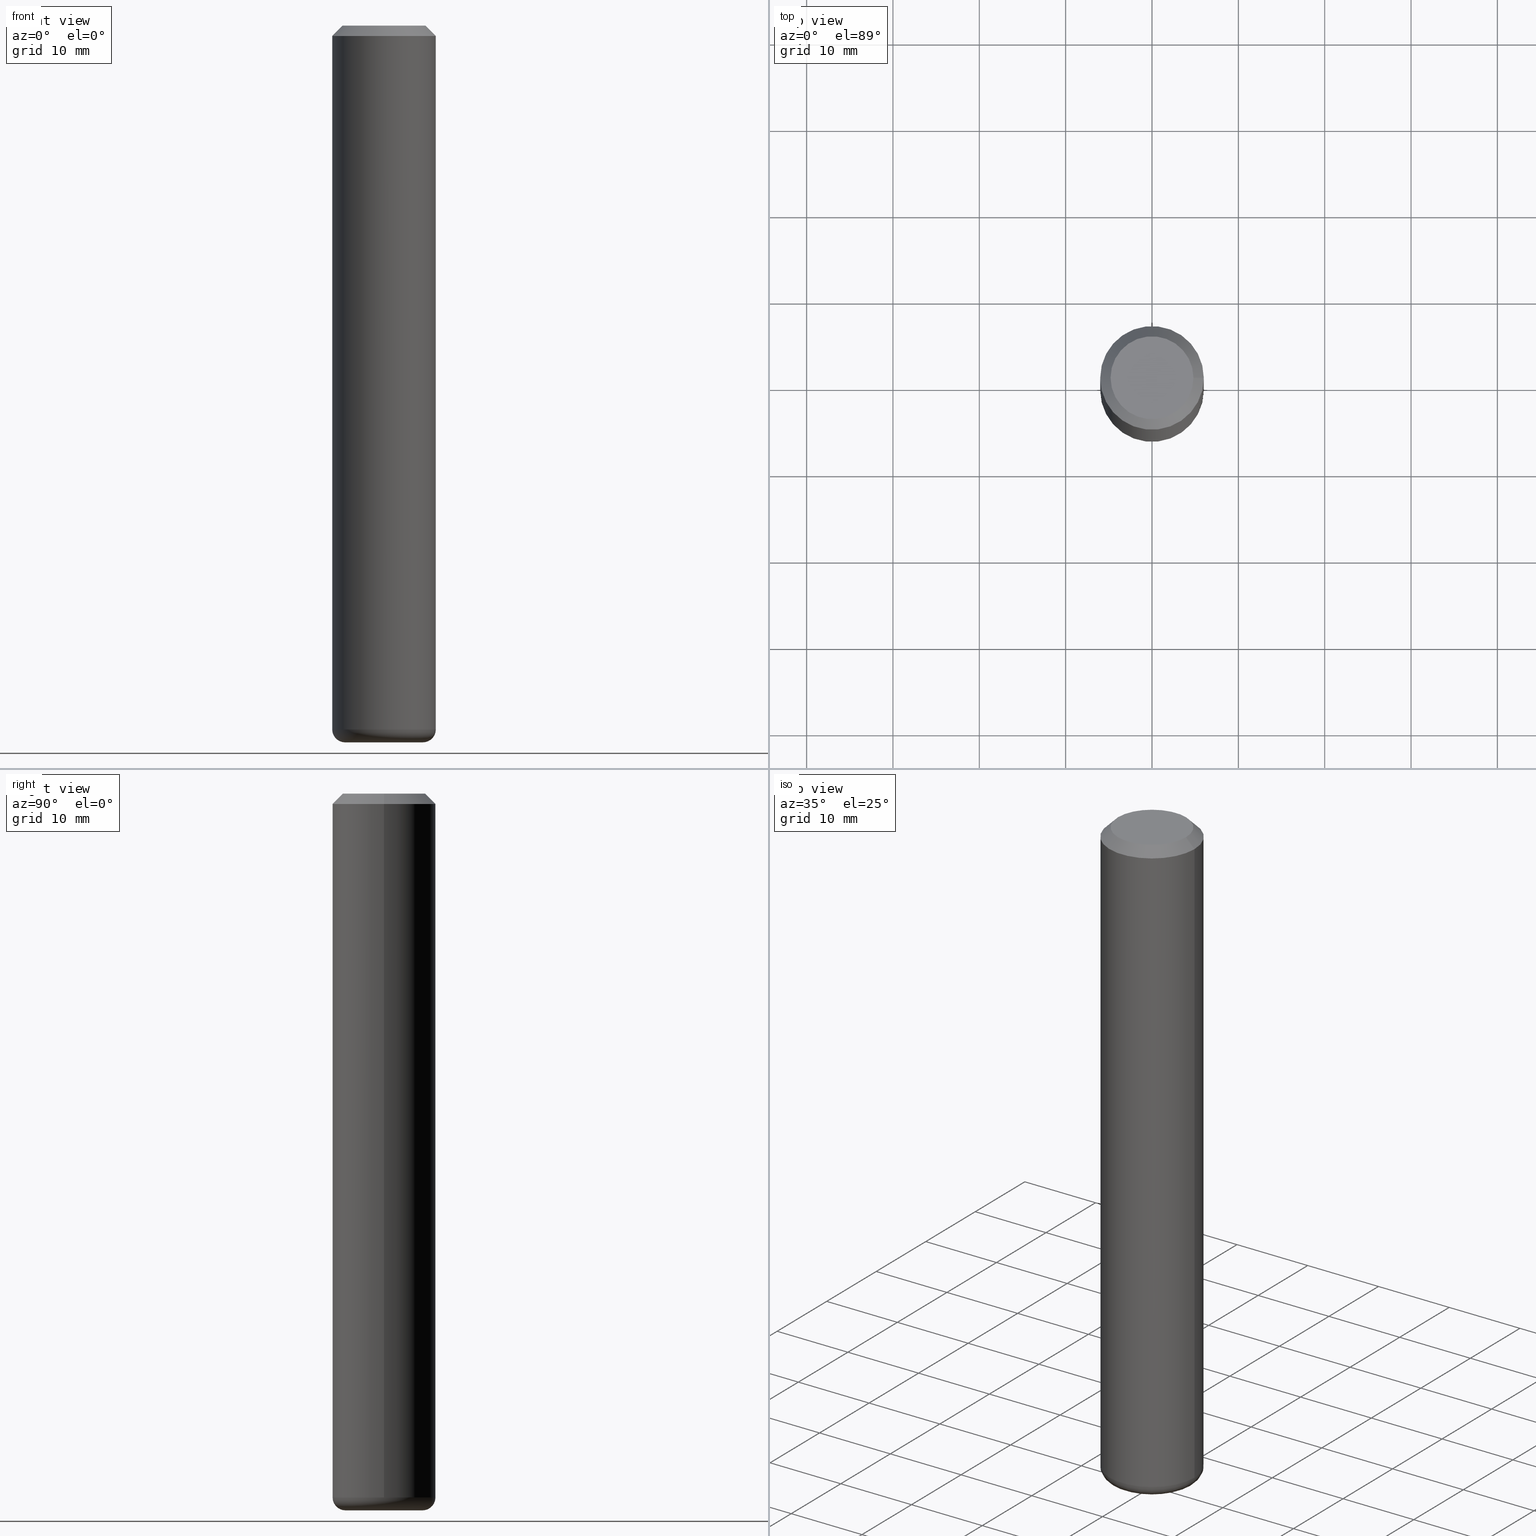
[diagram: canonical four-view strip — front | top / right | iso, engineering-drawing reading convention]
A machine part, canonical four-view strip (front | top / right | iso — engineering-drawing reading convention). The complete STEP part file that produces these views, byte-faithful:
ISO-10303-21;
HEADER;
FILE_DESCRIPTION (( 'STEP AP203' ),
    '1' );
FILE_NAME ('734.122.00.STEP',
    '2019-01-08T23:40:45',
    ( '' ),
    ( '' ),
    'SwSTEP 2.0',
    'SolidWorks 2019',
    '' );
FILE_SCHEMA (( 'CONFIG_CONTROL_DESIGN' ));
ENDSEC;

DATA;
#1 = CC_DESIGN_PERSON_AND_ORGANIZATION_ASSIGNMENT ( #138, #97, ( #116 ) ) ;
#2 = COORDINATED_UNIVERSAL_TIME_OFFSET ( 1, 0, .AHEAD. ) ;
#3 = AXIS2_PLACEMENT_3D ( 'NONE', #160, #59, #6 ) ;
#4 = PERSON_AND_ORGANIZATION ( #168, #75 ) ;
#5 =( NAMED_UNIT ( * ) SI_UNIT ( $, .STERADIAN. ) SOLID_ANGLE_UNIT ( ) );
#6 = DIRECTION ( 'NONE',  ( -1.000000000000000000, 0.0000000000000000000, 6.938893903907212600E-15 ) ) ;
#7 = APPROVAL_DATE_TIME ( #181, #41 ) ;
#8 = CARTESIAN_POINT ( 'NONE',  ( -5.795859022479601622E-13, 0.0000000000000000000, -83.00000000000000000 ) ) ;
#9 = ADVANCED_FACE ( 'NONE', ( #51 ), #218, .F. ) ;
#10 = APPROVAL_DATE_TIME ( #30, #17 ) ;
#11 = DIRECTION ( 'NONE',  ( -1.000000000000000000, 0.0000000000000000000, 6.982962677686266711E-15 ) ) ;
#12 = MANIFOLD_SOLID_BREP ( 'K�rper in Z minus drehen[2]', #221 ) ;
#13 = DIRECTION ( 'NONE',  ( -1.000000000000000000, 0.0000000000000000000, 7.970561502160112194E-15 ) ) ;
#14 = MANIFOLD_SOLID_BREP ( 'K�rper in Z minus drehen[1]', #111 ) ;
#15 = EDGE_LOOP ( 'NONE', ( #54 ) ) ;
#16 = CC_DESIGN_APPROVAL ( #187, ( #162 ) ) ;
#17 = APPROVAL ( #79, 'UNSPECIFIED' ) ;
#18 = PRODUCT_DEFINITION ( 'UNKNOWN', '', #162, #165 ) ;
#19 = AXIS2_PLACEMENT_3D ( 'NONE', #106, #32, #108 ) ;
#20 = DIRECTION ( 'NONE',  ( -7.970561502160112194E-15, 0.0000000000000000000, -1.000000000000000000 ) ) ;
#21 = PERSON_AND_ORGANIZATION ( #168, #75 ) ;
#22 = APPROVAL_ROLE ( '' ) ;
#23 = APPLICATION_CONTEXT ( 'configuration controlled 3d designs of mechanical parts and assemblies' ) ;
#24 = CC_DESIGN_APPROVAL ( #41, ( #18 ) ) ;
#25 = PERSON_AND_ORGANIZATION ( #168, #75 ) ;
#26 = DATE_AND_TIME ( #191, #213 ) ;
#27 = FACE_OUTER_BOUND ( 'NONE', #208, .T. ) ;
#28 = ADVANCED_FACE ( 'NONE', ( #27 ), #143, .T. ) ;
#29 = DIRECTION ( 'NONE',  ( 1.000000000000000000, 0.0000000000000000000, -6.982962677686266711E-15 ) ) ;
#30 = DATE_AND_TIME ( #58, #180 ) ;
#31 = AXIS2_PLACEMENT_3D ( 'NONE', #186, #113, #178 ) ;
#32 = DIRECTION ( 'NONE',  ( -6.982962677686266711E-15, -0.0000000000000000000, -1.000000000000000000 ) ) ;
#33 = FACE_OUTER_BOUND ( 'NONE', #45, .T. ) ;
#34 = APPROVAL_PERSON_ORGANIZATION ( #100, #187, #156 ) ;
#35 = CARTESIAN_POINT ( 'NONE',  ( -5.795859022479601622E-13, 0.0000000000000000000, -83.00000000000000000 ) ) ;
#36 = DIRECTION ( 'NONE',  ( -6.982962677686266711E-15, 0.0000000000000000000, -1.000000000000000000 ) ) ;
#37 = EDGE_LOOP ( 'NONE', ( #190 ) ) ;
#38 = AXIS2_PLACEMENT_3D ( 'NONE', #73, #197, #47 ) ;
#39 = CIRCLE ( 'NONE', #223, 6.000000000000015099 ) ;
#40 = CALENDAR_DATE ( 2019, 9, 1 ) ;
#41 = APPROVAL ( #96, 'UNSPECIFIED' ) ;
#42 = DIRECTION ( 'NONE',  ( 1.000000000000000000, 0.0000000000000000000, 0.0000000000000000000 ) ) ;
#43 = DIRECTION ( 'NONE',  ( -1.000000000000000000, 0.0000000000000000000, 6.982962677686266711E-15 ) ) ;
#44 = AXIS2_PLACEMENT_3D ( 'NONE', #8, #128, #109 ) ;
#45 = EDGE_LOOP ( 'NONE', ( #119 ) ) ;
#46 = CC_DESIGN_PERSON_AND_ORGANIZATION_ASSIGNMENT ( #4, #210, ( #162 ) ) ;
#47 = DIRECTION ( 'NONE',  ( -1.000000000000000000, 0.0000000000000000000, 9.251858538542942245E-15 ) ) ;
#48 = CYLINDRICAL_SURFACE ( 'NONE', #44, 6.000000000000015099 ) ;
#49 = PRODUCT_DEFINITION_SHAPE ( 'NONE', 'NONE',  #18 ) ;
#50 = FACE_OUTER_BOUND ( 'NONE', #154, .T. ) ;
#51 = FACE_OUTER_BOUND ( 'NONE', #65, .T. ) ;
#52 = DIRECTION ( 'NONE',  ( 6.982962677686266711E-15, 0.0000000000000000000, 1.000000000000000000 ) ) ;
#53 = APPROVAL_PERSON_ORGANIZATION ( #170, #17, #153 ) ;
#54 = ORIENTED_EDGE ( 'NONE', *, *, #150, .F. ) ;
#55 = PERSON_AND_ORGANIZATION_ROLE ( 'creator' ) ;
#56 =( LENGTH_UNIT ( ) NAMED_UNIT ( * ) SI_UNIT ( .MILLI., .METRE. ) );
#57 = CC_DESIGN_DATE_AND_TIME_ASSIGNMENT ( #26, #124, ( #18 ) ) ;
#58 = CALENDAR_DATE ( 2019, 9, 1 ) ;
#59 = DIRECTION ( 'NONE',  ( -7.970561502160112194E-15, 0.0000000000000000000, -1.000000000000000000 ) ) ;
#60 = DIRECTION ( 'NONE',  ( -6.982962677686266711E-15, -0.0000000000000000000, -1.000000000000000000 ) ) ;
#61 = ADVANCED_FACE ( 'NONE', ( #140 ), #117, .F. ) ;
#62 = APPROVAL_PERSON_ORGANIZATION ( #94, #41, #22 ) ;
#63 = VERTEX_POINT ( 'NONE', #102 ) ;
#64 = EDGE_LOOP ( 'NONE', ( #148 ) ) ;
#65 = EDGE_LOOP ( 'NONE', ( #101 ) ) ;
#66 = LOCAL_TIME ( 0, 40, 45.00000000000000000, #81 ) ;
#67 = CARTESIAN_POINT ( 'NONE',  ( 4.799999999999996270, 0.0000000000000000000, -3.351822085289405497E-14 ) ) ;
#68 = EDGE_CURVE ( 'NONE', #216, #216, #133, .T. ) ;
#69 = FACE_OUTER_BOUND ( 'NONE', #64, .T. ) ;
#70 = DIRECTION ( 'NONE',  ( 6.982962677686266711E-15, 0.0000000000000000000, 1.000000000000000000 ) ) ;
#71 = ADVANCED_FACE ( 'NONE', ( #103 ), #176, .T. ) ;
#72 = TOROIDAL_SURFACE ( 'NONE', #200, 4.500000000000012434, 1.500000000000000444 ) ;
#73 = CARTESIAN_POINT ( 'NONE',  ( -6.052634716842801132E-13, 0.0000000000000000000, -83.00000000000000000 ) ) ;
#74 = DIRECTION ( 'NONE',  ( 6.982962677686266711E-15, 0.0000000000000000000, 1.000000000000000000 ) ) ;
#75 = ORGANIZATION ( 'UNSPECIFIED', 'UNSPECIFIED', '' ) ;
#76 = DIRECTION ( 'NONE',  ( 1.000000000000000000, 0.0000000000000000000, -6.938893903907211023E-15 ) ) ;
#77 = DATE_AND_TIME ( #40, #167 ) ;
#78 = DIRECTION ( 'NONE',  ( -6.982962677686266711E-15, 0.0000000000000000000, -1.000000000000000000 ) ) ;
#79 = APPROVAL_STATUS ( 'not_yet_approved' ) ;
#80 = ORIENTED_EDGE ( 'NONE', *, *, #150, .T. ) ;
#81 = COORDINATED_UNIVERSAL_TIME_OFFSET ( 1, 0, .AHEAD. ) ;
#82 = ORIENTED_EDGE ( 'NONE', *, *, #184, .F. ) ;
#83 = ADVANCED_BREP_SHAPE_REPRESENTATION ( '734.122.00', ( #14, #12, #177 ), #217 ) ;
#84 = EDGE_LOOP ( 'NONE', ( #82 ) ) ;
#85 = FACE_OUTER_BOUND ( 'NONE', #37, .T. ) ;
#86 = SHAPE_DEFINITION_REPRESENTATION ( #49, #83 ) ;
#87 = VERTEX_POINT ( 'NONE', #146 ) ;
#88 = CARTESIAN_POINT ( 'NONE',  ( -1.515925944695570123E-30, 0.0000000000000000000, -2.170892233950556695E-16 ) ) ;
#89 = CC_DESIGN_PERSON_AND_ORGANIZATION_ASSIGNMENT ( #25, #179, ( #162 ) ) ;
#90 = CC_DESIGN_APPROVAL ( #17, ( #116 ) ) ;
#91 = CARTESIAN_POINT ( 'NONE',  ( -8.379555213223567384E-15, 0.0000000000000000000, -1.200000000000006617 ) ) ;
#92 = CC_DESIGN_PERSON_AND_ORGANIZATION_ASSIGNMENT ( #21, #99, ( #198 ) ) ;
#93 = AXIS2_PLACEMENT_3D ( 'NONE', #91, #74, #222 ) ;
#94 = PERSON_AND_ORGANIZATION ( #168, #75 ) ;
#95 = DIRECTION ( 'NONE',  ( -6.982962677686266711E-15, 0.0000000000000000000, -1.000000000000000000 ) ) ;
#96 = APPROVAL_STATUS ( 'not_yet_approved' ) ;
#97 = PERSON_AND_ORGANIZATION_ROLE ( 'classification_officer' ) ;
#98 = DIRECTION ( 'NONE',  ( -1.000000000000000000, 0.0000000000000000000, 6.982962677686266711E-15 ) ) ;
#99 = PERSON_AND_ORGANIZATION_ROLE ( 'design_owner' ) ;
#100 = PERSON_AND_ORGANIZATION ( #168, #75 ) ;
#101 = ORIENTED_EDGE ( 'NONE', *, *, #184, .T. ) ;
#102 = CARTESIAN_POINT ( 'NONE',  ( -4.500000000000619949, 0.0000000000000000000, -82.99999999999995737 ) ) ;
#103 = FACE_OUTER_BOUND ( 'NONE', #122, .T. ) ;
#104 = FACE_OUTER_BOUND ( 'NONE', #215, .T. ) ;
#105 = CARTESIAN_POINT ( 'NONE',  ( -6.000000000000606626, 0.0000000000000000000, -81.49999999999995737 ) ) ;
#106 = CARTESIAN_POINT ( 'NONE',  ( -3.980288726281172782E-13, 0.0000000000000000000, -57.00000000000000711 ) ) ;
#107 = ADVANCED_FACE ( 'NONE', ( #147, #182 ), #72, .T. ) ;
#108 = DIRECTION ( 'NONE',  ( 1.000000000000000000, 0.0000000000000000000, -6.938893903907211023E-15 ) ) ;
#109 = DIRECTION ( 'NONE',  ( 1.000000000000000000, 0.0000000000000000000, -6.938893903907211023E-15 ) ) ;
#110 = EDGE_CURVE ( 'NONE', #157, #157, #188, .T. ) ;
#111 = CLOSED_SHELL ( 'NONE', ( #61, #163, #107, #9 ) ) ;
#112 = CC_DESIGN_DATE_AND_TIME_ASSIGNMENT ( #189, #192, ( #116 ) ) ;
#113 = DIRECTION ( 'NONE',  ( 7.263061451194562470E-15, -0.0000000000000000000, 1.000000000000000000 ) ) ;
#114 = COORDINATED_UNIVERSAL_TIME_OFFSET ( 1, 0, .AHEAD. ) ;
#115 = PERSON_AND_ORGANIZATION ( #168, #75 ) ;
#116 = SECURITY_CLASSIFICATION ( '', '', #151 ) ;
#117 = PLANE ( 'NONE',  #194 ) ;
#118 = APPLICATION_PROTOCOL_DEFINITION ( 'international standard', 'config_control_design', 1994, #120 ) ;
#119 = ORIENTED_EDGE ( 'NONE', *, *, #172, .F. ) ;
#120 = APPLICATION_CONTEXT ( 'configuration controlled 3d designs of mechanical parts and assemblies' ) ;
#121 = APPLICATION_PROTOCOL_DEFINITION ( 'international standard', 'config_control_design', 1994, #23 ) ;
#122 = EDGE_LOOP ( 'NONE', ( #80 ) ) ;
#123 = AXIS2_PLACEMENT_3D ( 'NONE', #35, #52, #76 ) ;
#124 = DATE_TIME_ROLE ( 'creation_date' ) ;
#125 = CARTESIAN_POINT ( 'NONE',  ( 0.0000000000000000000, 0.0000000000000000000, 0.0000000000000000000 ) ) ;
#126 = DIRECTION ( 'NONE',  ( 6.982962677686266711E-15, 0.0000000000000000000, 1.000000000000000000 ) ) ;
#127 = AXIS2_PLACEMENT_3D ( 'NONE', #88, #70, #164 ) ;
#128 = DIRECTION ( 'NONE',  ( 6.982962677686266711E-15, 0.0000000000000000000, 1.000000000000000000 ) ) ;
#129 = CIRCLE ( 'NONE', #141, 4.799999999999996270 ) ;
#130 = CC_DESIGN_PERSON_AND_ORGANIZATION_ASSIGNMENT ( #115, #55, ( #18 ) ) ;
#131 = APPROVAL_STATUS ( 'not_yet_approved' ) ;
#132 =( NAMED_UNIT ( * ) PLANE_ANGLE_UNIT ( ) SI_UNIT ( $, .RADIAN. ) );
#133 = CIRCLE ( 'NONE', #19, 6.000000000000015099 ) ;
#134 = CARTESIAN_POINT ( 'NONE',  ( 0.0000000000000000000, 0.0000000000000000000, 0.0000000000000000000 ) ) ;
#135 = COORDINATED_UNIVERSAL_TIME_OFFSET ( 1, 0, .AHEAD. ) ;
#136 = EDGE_LOOP ( 'NONE', ( #183 ) ) ;
#137 = DIRECTION ( 'NONE',  ( 0.0000000000000000000, 0.0000000000000000000, 1.000000000000000000 ) ) ;
#138 = PERSON_AND_ORGANIZATION ( #168, #75 ) ;
#139 = CALENDAR_DATE ( 2019, 9, 1 ) ;
#140 = FACE_OUTER_BOUND ( 'NONE', #199, .T. ) ;
#141 = AXIS2_PLACEMENT_3D ( 'NONE', #125, #126, #29 ) ;
#142 = ORIENTED_EDGE ( 'NONE', *, *, #149, .F. ) ;
#143 = PLANE ( 'NONE',  #185 ) ;
#144 = ORIENTED_EDGE ( 'NONE', *, *, #172, .T. ) ;
#145 = CIRCLE ( 'NONE', #38, 4.500000000000014211 ) ;
#146 = CARTESIAN_POINT ( 'NONE',  ( 5.999999999999616307, 0.0000000000000000000, -57.00000000000004974 ) ) ;
#147 = FACE_OUTER_BOUND ( 'NONE', #136, .T. ) ;
#148 = ORIENTED_EDGE ( 'NONE', *, *, #149, .T. ) ;
#149 = EDGE_CURVE ( 'NONE', #87, #87, #39, .T. ) ;
#150 = EDGE_CURVE ( 'NONE', #161, #161, #129, .T. ) ;
#151 = SECURITY_CLASSIFICATION_LEVEL ( 'unclassified' ) ;
#152 = CC_DESIGN_SECURITY_CLASSIFICATION ( #116, ( #162 ) ) ;
#153 = APPROVAL_ROLE ( '' ) ;
#154 = EDGE_LOOP ( 'NONE', ( #214 ) ) ;
#155 = APPROVAL_DATE_TIME ( #77, #187 ) ;
#156 = APPROVAL_ROLE ( '' ) ;
#157 = VERTEX_POINT ( 'NONE', #105 ) ;
#158 = LOCAL_TIME ( 0, 40, 45.00000000000000000, #114 ) ;
#159 = ADVANCED_FACE ( 'NONE', ( #104, #207 ), #166, .T. ) ;
#160 = CARTESIAN_POINT ( 'NONE',  ( -5.933076294310400002E-13, 0.0000000000000000000, -81.50000000000000000 ) ) ;
#161 = VERTEX_POINT ( 'NONE', #67 ) ;
#162 = PRODUCT_DEFINITION_FORMATION_WITH_SPECIFIED_SOURCE ( 'ANY', '', #198, .NOT_KNOWN. ) ;
#163 = ADVANCED_FACE ( 'NONE', ( #85, #69 ), #48, .T. ) ;
#164 = DIRECTION ( 'NONE',  ( 1.000000000000000000, 0.0000000000000000000, -6.982962677686266711E-15 ) ) ;
#165 = DESIGN_CONTEXT ( 'detailed design', #23, 'design' ) ;
#166 = CONICAL_SURFACE ( 'NONE', #203, 4.799999999999996270, 0.7853981633974472798 ) ;
#167 = LOCAL_TIME ( 0, 40, 45.00000000000000000, #2 ) ;
#168 = PERSON ( 'UNSPECIFIED', 'UNSPECIFIED', 'UNSPECIFIED', ('UNSPECIFIED'), ('UNSPECIFIED'), ('UNSPECIFIED') ) ;
#169 = ADVANCED_FACE ( 'NONE', ( #50, #33 ), #220, .T. ) ;
#170 = PERSON_AND_ORGANIZATION ( #168, #75 ) ;
#171 = CARTESIAN_POINT ( 'NONE',  ( 0.0000000000000000000, 0.0000000000000000000, 0.0000000000000000000 ) ) ;
#172 = EDGE_CURVE ( 'NONE', #212, #212, #173, .T. ) ;
#173 = CIRCLE ( 'NONE', #93, 6.000000000000000000 ) ;
#174 = CARTESIAN_POINT ( 'NONE',  ( 5.999999999999616307, 0.0000000000000000000, -57.00000000000004974 ) ) ;
#175 = CARTESIAN_POINT ( 'NONE',  ( -5.933975868951060993E-13, 0.0000000000000000000, -81.50000000000000000 ) ) ;
#176 = PLANE ( 'NONE',  #127 ) ;
#177 = AXIS2_PLACEMENT_3D ( 'NONE', #171, #137, #42 ) ;
#178 = DIRECTION ( 'NONE',  ( 1.000000000000000000, 0.0000000000000000000, -7.263061451194562470E-15 ) ) ;
#179 = PERSON_AND_ORGANIZATION_ROLE ( 'creator' ) ;
#180 = LOCAL_TIME ( 0, 40, 45.00000000000000000, #209 ) ;
#181 = DATE_AND_TIME ( #139, #66 ) ;
#182 = FACE_OUTER_BOUND ( 'NONE', #84, .T. ) ;
#183 = ORIENTED_EDGE ( 'NONE', *, *, #110, .T. ) ;
#184 = EDGE_CURVE ( 'NONE', #63, #63, #145, .T. ) ;
#185 = AXIS2_PLACEMENT_3D ( 'NONE', #196, #95, #43 ) ;
#186 = CARTESIAN_POINT ( 'NONE',  ( -6.052634716842801132E-13, 0.0000000000000000000, -83.00000000000000000 ) ) ;
#187 = APPROVAL ( #131, 'UNSPECIFIED' ) ;
#188 = CIRCLE ( 'NONE', #3, 6.000000000000013323 ) ;
#189 = DATE_AND_TIME ( #205, #158 ) ;
#190 = ORIENTED_EDGE ( 'NONE', *, *, #110, .F. ) ;
#191 = CALENDAR_DATE ( 2019, 9, 1 ) ;
#192 = DATE_TIME_ROLE ( 'classification_date' ) ;
#193 = MECHANICAL_CONTEXT ( 'NONE', #120, 'mechanical' ) ;
#194 = AXIS2_PLACEMENT_3D ( 'NONE', #206, #78, #98 ) ;
#195 = DIRECTION ( 'NONE',  ( 1.000000000000000000, 0.0000000000000000000, -6.938893903907211023E-15 ) ) ;
#196 = CARTESIAN_POINT ( 'NONE',  ( -3.980288726281172782E-13, 0.0000000000000000000, -57.00000000000000711 ) ) ;
#197 = DIRECTION ( 'NONE',  ( -7.970561502160112194E-15, 0.0000000000000000000, -1.000000000000000000 ) ) ;
#198 = PRODUCT ( '734.122.00', '734.122.00', '', ( #193 ) ) ;
#199 = EDGE_LOOP ( 'NONE', ( #142 ) ) ;
#200 = AXIS2_PLACEMENT_3D ( 'NONE', #175, #20, #13 ) ;
#201 = PRODUCT_RELATED_PRODUCT_CATEGORY ( 'detail', '', ( #198 ) ) ;
#202 = CARTESIAN_POINT ( 'NONE',  ( 5.999999999999991118, 0.0000000000000000000, -1.200000000000048361 ) ) ;
#203 = AXIS2_PLACEMENT_3D ( 'NONE', #134, #36, #11 ) ;
#204 = UNCERTAINTY_MEASURE_WITH_UNIT (LENGTH_MEASURE( 1.000000000000000082E-05 ), #56, 'distance_accuracy_value', 'NONE');
#205 = CALENDAR_DATE ( 2019, 9, 1 ) ;
#206 = CARTESIAN_POINT ( 'NONE',  ( -3.980288726281172782E-13, 0.0000000000000000000, -57.00000000000000711 ) ) ;
#207 = FACE_BOUND ( 'NONE', #15, .T. ) ;
#208 = EDGE_LOOP ( 'NONE', ( #219 ) ) ;
#209 = COORDINATED_UNIVERSAL_TIME_OFFSET ( 1, 0, .AHEAD. ) ;
#210 = PERSON_AND_ORGANIZATION_ROLE ( 'design_supplier' ) ;
#211 = CARTESIAN_POINT ( 'NONE',  ( -3.980288726281172782E-13, 0.0000000000000000000, -57.00000000000000711 ) ) ;
#212 = VERTEX_POINT ( 'NONE', #202 ) ;
#213 = LOCAL_TIME ( 0, 40, 45.00000000000000000, #135 ) ;
#214 = ORIENTED_EDGE ( 'NONE', *, *, #68, .F. ) ;
#215 = EDGE_LOOP ( 'NONE', ( #144 ) ) ;
#216 = VERTEX_POINT ( 'NONE', #174 ) ;
#217 =( GEOMETRIC_REPRESENTATION_CONTEXT ( 3 ) GLOBAL_UNCERTAINTY_ASSIGNED_CONTEXT ( ( #204 ) ) GLOBAL_UNIT_ASSIGNED_CONTEXT ( ( #56, #132, #5 ) ) REPRESENTATION_CONTEXT ( 'NONE', 'WORKASPACE' ) );
#218 = PLANE ( 'NONE',  #31 ) ;
#219 = ORIENTED_EDGE ( 'NONE', *, *, #68, .T. ) ;
#220 = CYLINDRICAL_SURFACE ( 'NONE', #123, 6.000000000000015099 ) ;
#221 = CLOSED_SHELL ( 'NONE', ( #169, #71, #159, #28 ) ) ;
#222 = DIRECTION ( 'NONE',  ( 1.000000000000000000, 0.0000000000000000000, -6.975033976323412122E-15 ) ) ;
#223 = AXIS2_PLACEMENT_3D ( 'NONE', #211, #60, #195 ) ;
ENDSEC;
END-ISO-10303-21;
15452